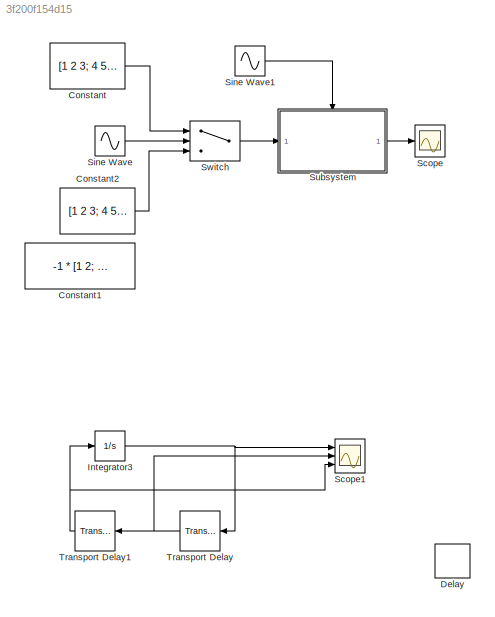
MODEL slx_3f200f154d15
KIND model
CONFIG AbsTol = auto
CONFIG EnableMultiTasking = off
CONFIG FixedStep = auto
CONFIG MaxStep = auto
CONFIG MinStep = auto
CONFIG RelTol = 1e-3
CONFIG SampleTimeConstraint = Unconstrained
CONFIG Solver = VariableStepAuto
CONFIG SolverName = VariableStepAuto
CONFIG StartTime = 0.0
CONFIG StopTime = 10
BLOCK [Constant] Constant
  Value = [1 2 3; 4 5 6; 7 8 9]
BLOCK [Constant] Constant1
  Value = -1 * [1 2; 4 5; 7 8]
BLOCK [Constant] Constant2
  Value = [1 2 3; 4 5 6; 7 8 9]
BLOCK [Delay] Delay
  DelayLength = 0
  InitialCondition = 0
  InputPortMap = u0
  Ports = [1, 1]
BLOCK [Integrator] Integrator3
  InitialCondition = -6
  Ports = [1, 1]
BLOCK [Scope] Scope
  Floating = off
  NumInputPorts = 1
  Ports = [1]
  ScopeSpecificationString = Simulink.scopes.TimeScopeBlockCfg('CurrentConfiguration', extmgr.ConfigurationSet(extmgr.Configuration('Core','General UI',true),extmgr.Configuration('Core','Source UI',true),extmgr.Configuration('Sources','WiredSimulink',true),extmgr.Configuration('Visuals','Time Domain',true,'SerializedDisplays',{struct('MinYLimReal','-1.125','MaxYLimReal','10.125','YLabelReal','','MinYLimMag','0.00000','MaxYLim...<+1464ch>
BLOCK [Scope] Scope1
  Floating = off
  NumInputPorts = 3
  Ports = [3]
  ScopeSpecificationString = Simulink.scopes.TimeScopeBlockCfg('CurrentConfiguration', extmgr.ConfigurationSet(extmgr.Configuration('Core','General UI',true),extmgr.Configuration('Core','Source UI',true),extmgr.Configuration('Sources','WiredSimulink',true,'DataLoggingVariableName','ScopeData1','SampleTime','0.1'),extmgr.Configuration('Visuals','Time Domain',true,'SerializedDisplays',{struct('MinYLimReal','-253.39757','MaxYLim...<+1464ch>
BLOCK [Sin] Sine Wave
  Ports = [0, 1]
  SampleTime = 0
BLOCK [Sin] Sine Wave1
  Ports = [0, 1]
  SampleTime = 0
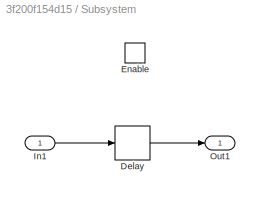
BLOCK [SubSystem] Subsystem
  Ports = [1, 1, 1]
  RequestExecContextInheritance = off
BLOCK [Delay] Subsystem/Delay
  InitialCondition = 0
  InputPortMap = u0
  Ports = [1, 1]
BLOCK [EnablePort] Subsystem/Enable
  Ports = []
BLOCK [Inport] Subsystem/In1
  IconDisplay = Port number
BLOCK [Outport] Subsystem/Out1
  IconDisplay = Port number
BLOCK [Switch] Switch
  InputSameDT = off
  SaturateOnIntegerOverflow = off
BLOCK [TransportDelay] Transport Delay
  Ports = [1, 1]
BLOCK [TransportDelay] Transport Delay1
  Ports = [1, 1]
LINE Constant2:1 -> Switch:3
LINE Constant:1 -> Switch:1
NET Integrator3:1 -> Scope1:1, Transport Delay:1
LINE Sine Wave1:1 -> Subsystem:enable
LINE Sine Wave:1 -> Switch:2
LINE Subsystem/Delay:1 -> Subsystem/Out1:1
LINE Subsystem/In1:1 -> Subsystem/Delay:1
LINE Subsystem:1 -> Scope:1
LINE Switch:1 -> Subsystem:1
NET Transport Delay1:1 -> Integrator3:1, Scope1:3
NET Transport Delay:1 -> Scope1:2, Transport Delay1:1
note: NET lines group one-source signal fan-out (src -> all destinations, sorted); 1:1 wires keep LINE
